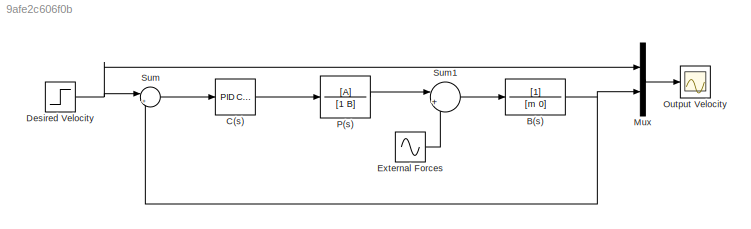
MODEL slx_9afe2c606f0b
KIND model
CONFIG AbsTol = auto
CONFIG FixedStep = auto
CONFIG MaxStep = auto
CONFIG MinStep = auto
CONFIG PreLoadFcn = boat_constants
CONFIG RelTol = 1e-3
CONFIG SampleTimeConstraint = Unconstrained
CONFIG Solver = VariableStepAuto
CONFIG SolverMode = Auto
CONFIG SolverName = VariableStepAuto
CONFIG StartTime = 0.0
CONFIG StopTime = 50
BLOCK [TransferFcn] B(s)
  Denominator = [m 0]
BLOCK [Reference] C(s)  REF=simulink/Continuous/PID Controller
  Ports = [1, 1]
  SourceBlock = simulink/Continuous/PID Controller
  SourceType = PID 1dof
BLOCK [Step] Desired Velocity	
  SampleTime = 0
  Time = 0
BLOCK [Sin] External Forces
  Amplitude = .5
  Frequency = .5
  Ports = [0, 1]
  SampleTime = 0
BLOCK [Mux] Mux
  DisplayOption = bar
  Inputs = 2
  Ports = [2, 1]
BLOCK [Scope] Output Velocity
  Ports = [1]
  ScopeSpecificationString = Simulink.scopes.TimeScopeBlockCfg('CurrentConfiguration', extmgr.ConfigurationSet(extmgr.Configuration('Core','General UI',true),extmgr.Configuration('Core','Source UI',true),extmgr.Configuration('Sources','WiredSimulink',true),extmgr.Configuration('Visuals','Time Domain',true,'SerializedDisplays',{struct('MinYLimReal','-0.1378','MaxYLimReal','1.24018','YLabelReal','','MinYLimMag','0.00000','MaxYL...<+1683ch>
BLOCK [TransferFcn] P(s)
  Denominator = [1 B]
  Numerator = [A]
BLOCK [Sum] Sum
  IconShape = round
  InputSameDT = off
  Inputs = |+-
  OutDataTypeStr = Inherit: Inherit via internal rule
  Ports = [2, 1]
  SaturateOnIntegerOverflow = off
BLOCK [Sum] Sum1
  IconShape = round
  InputSameDT = off
  Inputs = |++
  OutDataTypeStr = Inherit: Inherit via internal rule
  Ports = [2, 1]
  SaturateOnIntegerOverflow = off
NET B(s):1 -> Mux:2, Sum:2
LINE C(s):1 -> P(s):1
NET Desired Velocity	:1 -> Mux:1, Sum:1
LINE External Forces:1 -> Sum1:2
LINE Mux:1 -> Output Velocity:1
LINE P(s):1 -> Sum1:1
LINE Sum1:1 -> B(s):1
LINE Sum:1 -> C(s):1
note: NET lines group one-source signal fan-out (src -> all destinations, sorted); 1:1 wires keep LINE
